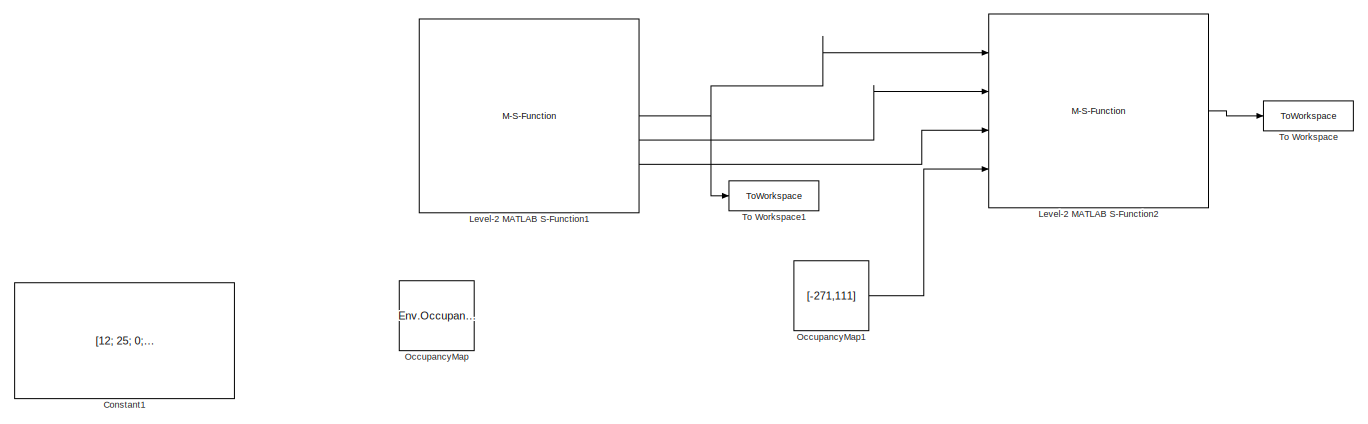
[diagram: root canvas - part 1/2, full width, top band]
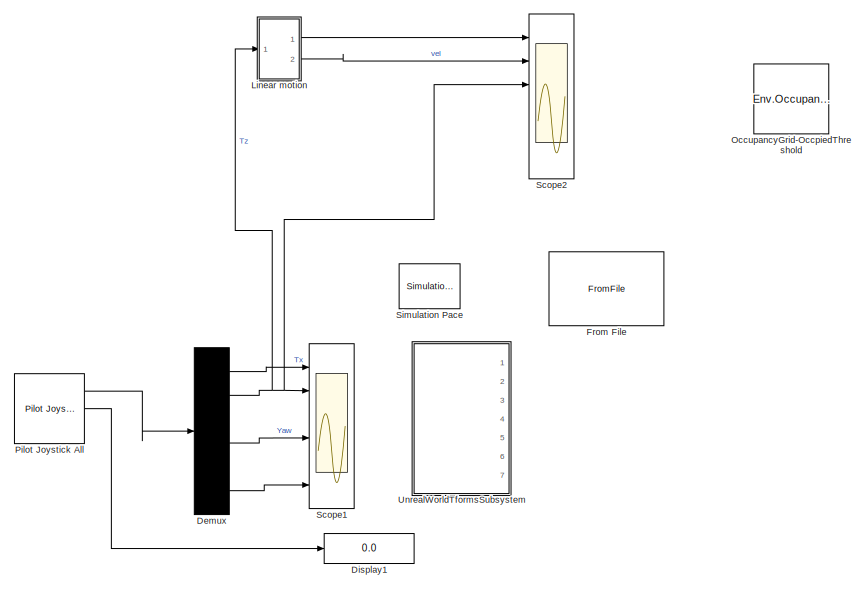
[diagram: root canvas - part 2/2, bottom center region]
MODEL slx_0cc8c9f96be2
KIND model
CONFIG AbsTol = auto
CONFIG EnableMultiTasking = off
CONFIG FixedStep = auto
CONFIG MaxStep = auto
CONFIG MinStep = auto
CONFIG RelTol = 1e-3
CONFIG SampleTimeConstraint = Unconstrained
CONFIG SolverName = VariableStepAuto
CONFIG StartTime = 0.0
CONFIG StopTime = 10
BLOCK [Constant] Constant1
  Commented = on
  OutDataTypeStr = int32
  SampleTime = 1
  Value = [12; 25; 0; 0]
BLOCK [Demux] Demux
  Commented = on
  Outputs = 6
  Ports = [1, 6]
BLOCK [Display] Display1
  Commented = on
  Decimation = 1
  Ports = [1]
BLOCK [FromFile] From File
  Commented = on
  FileName = SimEnvironment.mat
  SampleTime = 0
BLOCK [M-S-Function] Level-2 MATLAB S-Function1
  FunctionName = EnvConstants
  Ports = [1, 7]
  Priority = 1
BLOCK [M-S-Function] Level-2 MATLAB S-Function2
  Commented = on
  FunctionName = UnrealToWorldTransform
  Ports = [4, 1]
  Priority = 1
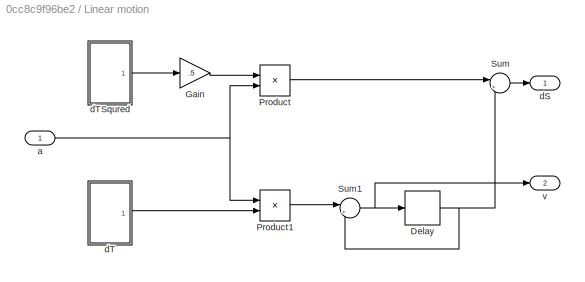
BLOCK [SubSystem] Linear motion
  Commented = on
  Ports = [1, 2]
  RequestExecContextInheritance = off
BLOCK [Delay] Linear motion/Delay
  DelayLength = 1
  InitialCondition = 0
  InputPortMap = u0
  Ports = [1, 1]
BLOCK [Gain] Linear motion/Gain
  Gain = .5
BLOCK [Product] Linear motion/Product
  Ports = [2, 1]
BLOCK [Product] Linear motion/Product1
  Ports = [2, 1]
BLOCK [Sum] Linear motion/Sum
  Inputs = |++
  Ports = [2, 1]
BLOCK [Sum] Linear motion/Sum1
  Inputs = |++
  Ports = [2, 1]
BLOCK [Inport] Linear motion/a
BLOCK [Outport] Linear motion/dS
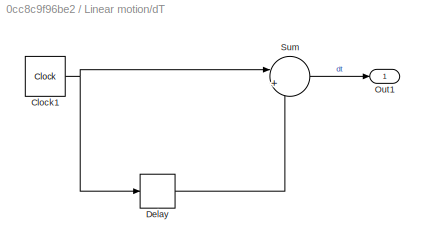
BLOCK [SubSystem] Linear motion/dT
  Ports = [0, 1]
  RequestExecContextInheritance = off
BLOCK [Clock] Linear motion/dT/Clock1
BLOCK [Delay] Linear motion/dT/Delay
  DelayLength = 1
  InitialCondition = 0
  InputPortMap = u0
  Ports = [1, 1]
BLOCK [Outport] Linear motion/dT/Out1
BLOCK [Sum] Linear motion/dT/Sum
  Inputs = |+-
  Ports = [2, 1]
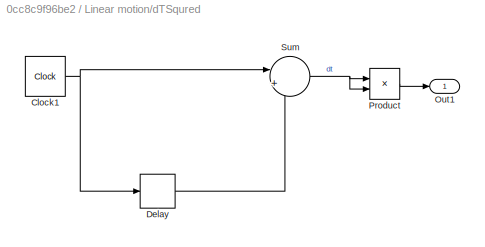
BLOCK [SubSystem] Linear motion/dTSqured
  Ports = [0, 1]
  RequestExecContextInheritance = off
BLOCK [Clock] Linear motion/dTSqured/Clock1
BLOCK [Delay] Linear motion/dTSqured/Delay
  DelayLength = 1
  InitialCondition = 0
  InputPortMap = u0
  Ports = [1, 1]
BLOCK [Outport] Linear motion/dTSqured/Out1
BLOCK [Product] Linear motion/dTSqured/Product
  Ports = [2, 1]
BLOCK [Sum] Linear motion/dTSqured/Sum
  Inputs = |+-
  Ports = [2, 1]
BLOCK [Outport] Linear motion/v
  Port = 2
BLOCK [Constant] OccupancyGrid-OccpiedThreshold
  Commented = on
  Value = Env.OccupancyGrid.OccupiedThreshold
BLOCK [Constant] OccupancyMap
  Commented = on
  Value = Env.OccupancyMap
BLOCK [Constant] OccupancyMap1
  Commented = on
  OutDataTypeStr = single
  Value = [-271,111]
BLOCK [Reference] Pilot Joystick All  REF=aerolibanimutils/Pilot Joystick
  Commented = on
  Ports = [0, 3]
  SourceBlock = aerolibanimutils/Pilot Joystick
  SourceProductBaseCode = AE
  SourceType = PilotJoystick
BLOCK [Scope] Scope1
  Commented = on
  Floating = off
  NumInputPorts = 6
  Ports = [6]
  ScopeSpecificationString = Simulink.scopes.TimeScopeBlockCfg('CurrentConfiguration', extmgr.ConfigurationSet(extmgr.Configuration('Core','General UI',true),extmgr.Configuration('Core','Source UI',true),extmgr.Configuration('Sources','WiredSimulink',true),extmgr.Configuration('Visuals','Time Domain',true,'SerializedDisplays',{struct('MinYLimReal','-1.25','MaxYLimReal','1.25003','YLabelReal','','MinYLimMag','0.00000','MaxYLim...<+4979ch>
BLOCK [Scope] Scope2
  Commented = on
  Floating = off
  NumInputPorts = 6
  Ports = [6]
  ScopeSpecificationString = Simulink.scopes.TimeScopeBlockCfg('CurrentConfiguration', extmgr.ConfigurationSet(extmgr.Configuration('Core','General UI',true),extmgr.Configuration('Core','Source UI',true),extmgr.Configuration('Sources','WiredSimulink',true,'DataLoggingVariableName','ScopeData1'),extmgr.Configuration('Visuals','Time Domain',true,'SerializedDisplays',{struct('MinYLimReal','-0.19655','MaxYLimReal','1.76896','YLab...<+5146ch>
BLOCK [Reference] Simulation Pace  REF=aerolibanimutils/Simulation Pace
  AttributesFormatString = %<SleepMode>\n%<SimulationPace> sec/sec
  Commented = on
  Ports = []
  SourceBlock = aerolibanimutils/Simulation Pace
  SourceProductBaseCode = AE
  SourceType = Simulation Pace
BLOCK [ToWorkspace] To Workspace
  Commented = on
  FixptAsFi = on
  MaxDataPoints = inf
  Ports = [1]
  SampleTime = -1
  SaveFormat = Timeseries
  VariableName = simout
BLOCK [ToWorkspace] To Workspace1
  Commented = on
  FixptAsFi = on
  MaxDataPoints = inf
  Ports = [1]
  SampleTime = -1
  SaveFormat = Timeseries
  VariableName = simout1
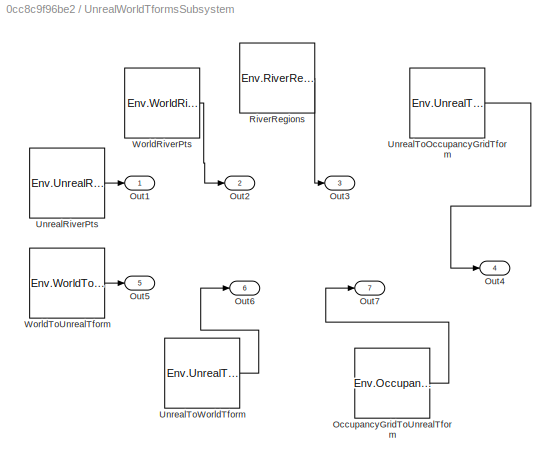
BLOCK [SubSystem] UnrealWorldTformsSubsystem
  Commented = on
  Ports = [0, 7]
  RequestExecContextInheritance = off
BLOCK [Constant] UnrealWorldTformsSubsystem/OccupancyGridToUnrealTform
  Value = Env.OccupancyGridToUnrealTform
BLOCK [Outport] UnrealWorldTformsSubsystem/Out1
  IconDisplay = Port number and signal name
BLOCK [Outport] UnrealWorldTformsSubsystem/Out2
  Port = 2
BLOCK [Outport] UnrealWorldTformsSubsystem/Out3
  Port = 3
BLOCK [Outport] UnrealWorldTformsSubsystem/Out4
  Port = 4
BLOCK [Outport] UnrealWorldTformsSubsystem/Out5
  Port = 5
BLOCK [Outport] UnrealWorldTformsSubsystem/Out6
  Port = 6
BLOCK [Outport] UnrealWorldTformsSubsystem/Out7
  Port = 7
BLOCK [Constant] UnrealWorldTformsSubsystem/RiverRegions
  Value = Env.RiverRegions
BLOCK [Constant] UnrealWorldTformsSubsystem/UnrealRiverPts
  Value = Env.UnrealRiverPts
BLOCK [Constant] UnrealWorldTformsSubsystem/UnrealToOccupancyGridTform
  Value = Env.UnrealToOccupancyGridTform
BLOCK [Constant] UnrealWorldTformsSubsystem/UnrealToWorldTform
  Value = Env.UnrealToWorldTform
BLOCK [Constant] UnrealWorldTformsSubsystem/WorldRiverPts
  Value = Env.WorldRiverPts
BLOCK [Constant] UnrealWorldTformsSubsystem/WorldToUnrealTform
  Value = Env.WorldToUnrealTform
LINE Demux:1 -> Scope1:1
NET Demux:2 -> Linear motion:1, Scope1:2, Scope2:3
LINE Demux:4 -> Scope1:4
LINE Demux:6 -> Scope1:6
NET Level-2 MATLAB S-Function1:4 -> Level-2 MATLAB S-Function2:1, To Workspace1:1
LINE Level-2 MATLAB S-Function1:5 -> Level-2 MATLAB S-Function2:2
LINE Level-2 MATLAB S-Function1:6 -> Level-2 MATLAB S-Function2:3
LINE Level-2 MATLAB S-Function2:1 -> To Workspace:1
NET Linear motion/Delay:1 -> Linear motion/Sum1:2, Linear motion/Sum:2
LINE Linear motion/Gain:1 -> Linear motion/Product:1
LINE Linear motion/Product1:1 -> Linear motion/Sum1:1
LINE Linear motion/Product:1 -> Linear motion/Sum:1
NET Linear motion/Sum1:1 -> Linear motion/Delay:1, Linear motion/v:1
LINE Linear motion/Sum:1 -> Linear motion/dS:1
NET Linear motion/a:1 -> Linear motion/Product1:1, Linear motion/Product:2
NET Linear motion/dT/Clock1:1 -> Linear motion/dT/Delay:1, Linear motion/dT/Sum:1
LINE Linear motion/dT/Delay:1 -> Linear motion/dT/Sum:2
LINE Linear motion/dT/Sum:1 -> Linear motion/dT/Out1:1
LINE Linear motion/dT:1 -> Linear motion/Product1:2
NET Linear motion/dTSqured/Clock1:1 -> Linear motion/dTSqured/Delay:1, Linear motion/dTSqured/Sum:1
LINE Linear motion/dTSqured/Delay:1 -> Linear motion/dTSqured/Sum:2
LINE Linear motion/dTSqured/Product:1 -> Linear motion/dTSqured/Out1:1
NET Linear motion/dTSqured/Sum:1 -> Linear motion/dTSqured/Product:1, Linear motion/dTSqured/Product:2
LINE Linear motion/dTSqured:1 -> Linear motion/Gain:1
LINE Linear motion:1 -> Scope2:1
LINE Linear motion:2 -> Scope2:2
LINE OccupancyMap1:1 -> Level-2 MATLAB S-Function2:4
LINE Pilot Joystick All:1 -> Demux:1
LINE Pilot Joystick All:2 -> Display1:1
LINE UnrealWorldTformsSubsystem/OccupancyGridToUnrealTform:1 -> UnrealWorldTformsSubsystem/Out7:1
LINE UnrealWorldTformsSubsystem/RiverRegions:1 -> UnrealWorldTformsSubsystem/Out3:1
LINE UnrealWorldTformsSubsystem/UnrealRiverPts:1 -> UnrealWorldTformsSubsystem/Out1:1
LINE UnrealWorldTformsSubsystem/UnrealToOccupancyGridTform:1 -> UnrealWorldTformsSubsystem/Out4:1
LINE UnrealWorldTformsSubsystem/UnrealToWorldTform:1 -> UnrealWorldTformsSubsystem/Out6:1
LINE UnrealWorldTformsSubsystem/WorldRiverPts:1 -> UnrealWorldTformsSubsystem/Out2:1
LINE UnrealWorldTformsSubsystem/WorldToUnrealTform:1 -> UnrealWorldTformsSubsystem/Out5:1
note: NET lines group one-source signal fan-out (src -> all destinations, sorted); 1:1 wires keep LINE
